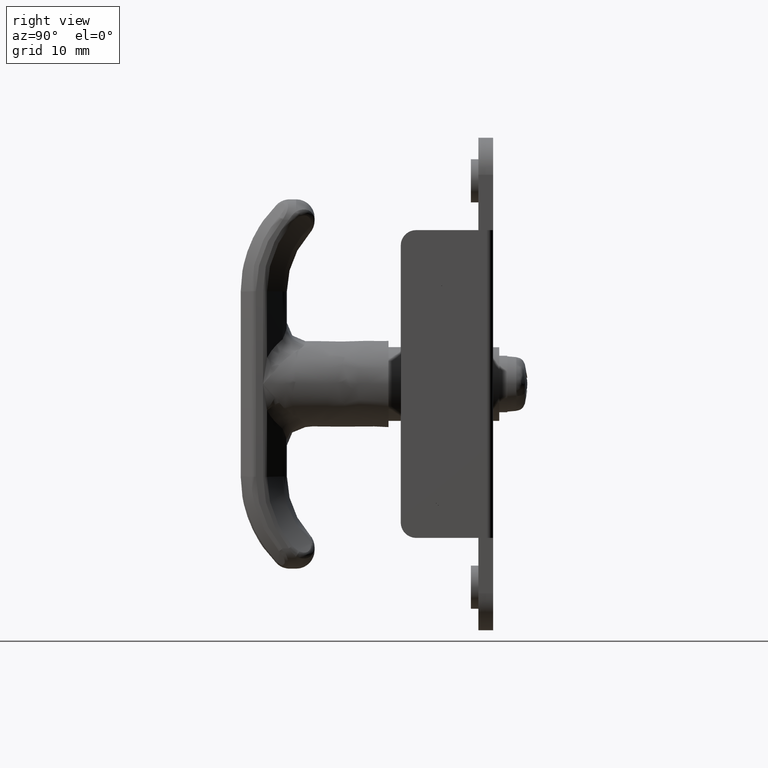
[diagram: clean part render]
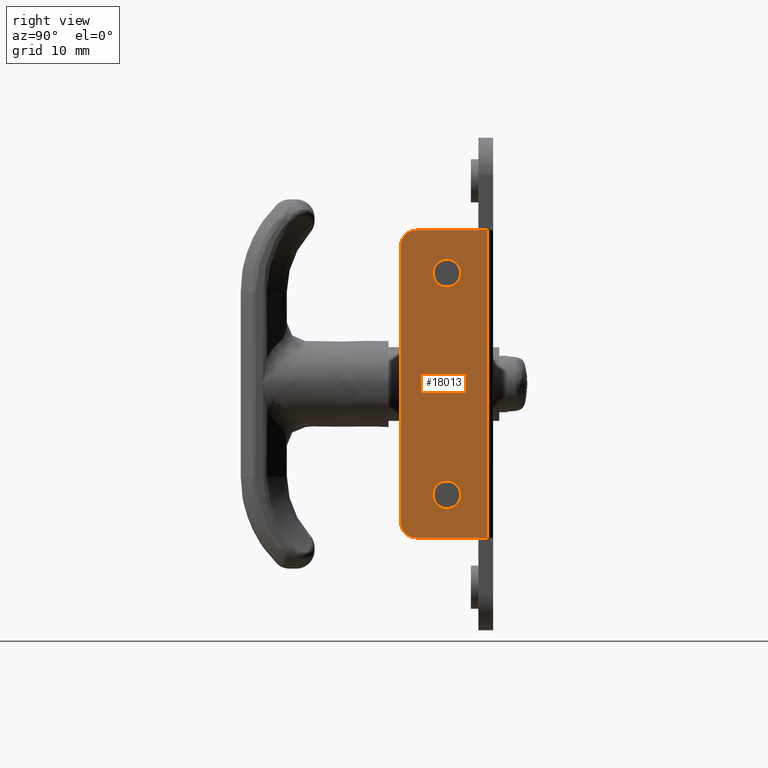
[diagram: same view with one face highlighted and labeled with its STEP entity id]
A machine part, right view. The second image highlights one B-rep face of the part: STEP entity #18013.
In plain terms, the highlighted face is a freeform B-spline surface patch.
Its self-contained STEP definition (entity closure, byte-faithful):
#17388=CARTESIAN_POINT('',(28.750001214080900,-9.218000567834576,16.547080030124668));
#17389=VERTEX_POINT('',#17388);
#17390=CARTESIAN_POINT('',(28.750001214073901,-7.500000000000000,15.750000000000000));
#17391=VERTEX_POINT('',#17390);
#17392=CARTESIAN_POINT('',(28.750001214080900,-9.218000567834576,16.547080030124668));
#17393=CARTESIAN_POINT('',(28.750001214080410,-9.093127849989340,16.399328795595729));
#17394=CARTESIAN_POINT('',(28.750001214079390,-8.858003864478269,16.184857133151802));
#17395=CARTESIAN_POINT('',(28.750001214077770,-8.461253535030773,15.952700355840060));
#17396=CARTESIAN_POINT('',(28.750001214076150,-8.029395461073410,15.793607148507160));
#17397=CARTESIAN_POINT('',(28.750001214074580,-7.693450461458395,15.749942438303700));
#17398=CARTESIAN_POINT('',(28.750001214073901,-7.500000000000000,15.750000000000000));
#17399=B_SPLINE_CURVE_WITH_KNOTS('',3,(#17392,#17393,#17394,#17395,#17396,#17397,#17398),.UNSPECIFIED.,.F.,.U.,(4,1,1,1,4),(0.000000037674338,0.580338301665490,0.946883888496925,1.374480573568158,1.954818837554128),.UNSPECIFIED.);
#17400=EDGE_CURVE('',#17389,#17391,#17399,.T.);
#17402=CARTESIAN_POINT('',(28.750001214073890,-5.250000000001030,18.000002154295672));
#17403=VERTEX_POINT('',#17402);
#17404=CARTESIAN_POINT('',(28.750001214073901,-7.500000000000000,15.750000000000000));
#17405=CARTESIAN_POINT('',(28.750001214073901,-7.260679371651110,15.749871941433311));
#17406=CARTESIAN_POINT('',(28.750001214073858,-6.911023455141323,15.806333772412829));
#17407=CARTESIAN_POINT('',(28.750001214073951,-6.450594946384420,15.997099314913520));
#17408=CARTESIAN_POINT('',(28.750001214073819,-6.106801449783703,16.214783880951249));
#17409=CARTESIAN_POINT('',(28.750001214073912,-5.758488719292896,16.546389300110910));
#17410=CARTESIAN_POINT('',(28.750001214073858,-5.511192470252468,16.916472905762831));
#17411=CARTESIAN_POINT('',(28.750001214073890,-5.306352783828005,17.411037198152179));
#17412=CARTESIAN_POINT('',(28.750001214073929,-5.249864767075620,17.760677917075508));
#17413=CARTESIAN_POINT('',(28.750001214073890,-5.250000000001030,18.000002154295672));
#17414=B_SPLINE_CURVE_WITH_KNOTS('',3,(#17404,#17405,#17406,#17407,#17408,#17409,#17410,#17411,#17412,#17413),.UNSPECIFIED.,.F.,.U.,(4,1,1,1,1,1,1,4),(0.000000059733472,0.717917429352213,1.049274945288062,1.491086140115317,1.932850529557592,2.485107296590333,2.816465192005662,3.534381638980434),.UNSPECIFIED.);
#17415=EDGE_CURVE('',#17391,#17403,#17414,.T.);
#17417=CARTESIAN_POINT('',(28.750001214073901,-7.500000000000000,20.250000000000000));
#17418=VERTEX_POINT('',#17417);
#17419=CARTESIAN_POINT('',(28.750001214073890,-5.250000000001030,18.000002154295672));
#17420=CARTESIAN_POINT('',(28.750001214073858,-5.249869454136657,18.239321430038540));
#17421=CARTESIAN_POINT('',(28.750001214073979,-5.312276752330865,18.625792411638852));
#17422=CARTESIAN_POINT('',(28.750001214073801,-5.529689347817583,19.116180994300219));
#17423=CARTESIAN_POINT('',(28.750001214074011,-5.785294750648569,19.479120054865952));
#17424=CARTESIAN_POINT('',(28.750001214073869,-6.080014325436256,19.759693700462069));
#17425=CARTESIAN_POINT('',(28.750001214073880,-6.417645428383884,19.985294536933971));
#17426=CARTESIAN_POINT('',(28.750001214073880,-6.874205248248210,20.187730325524761));
#17427=CARTESIAN_POINT('',(28.750001214074040,-7.260682963684569,20.250128121775610));
#17428=CARTESIAN_POINT('',(28.750001214073901,-7.500000000000000,20.250000000000000));
#17429=B_SPLINE_CURVE_WITH_KNOTS('',3,(#17419,#17420,#17421,#17422,#17423,#17424,#17425,#17426,#17427,#17428),.UNSPECIFIED.,.F.,.U.,(4,1,1,1,1,1,1,4),(0.000000062689470,0.717916938295695,1.159729760297274,1.601529381446035,2.043293458178522,2.374649871447002,2.816463255878045,3.534379210526552),.UNSPECIFIED.);
#17430=EDGE_CURVE('',#17403,#17418,#17429,.T.);
#17432=CARTESIAN_POINT('',(28.750001214041720,-9.048797375063789,19.632091992117541));
#17433=VERTEX_POINT('',#17432);
#17434=CARTESIAN_POINT('',(28.750001214073901,-7.500000000000000,20.250000000000000));
#17435=CARTESIAN_POINT('',(28.750001214069790,-7.695742636055701,20.250059694257128));
#17436=CARTESIAN_POINT('',(28.750001214062848,-8.033796451849049,20.205586695869890));
#17437=CARTESIAN_POINT('',(28.750001214051679,-8.569960007851625,20.006322665175961));
#17438=CARTESIAN_POINT('',(28.750001214045199,-8.881061755686185,19.791414085106439));
#17439=CARTESIAN_POINT('',(28.750001214041720,-9.048797375063789,19.632091992117541));
#17440=B_SPLINE_CURVE_WITH_KNOTS('',3,(#17434,#17435,#17436,#17437,#17438,#17439),.UNSPECIFIED.,.F.,.U.,(4,1,1,4),(0.000000020755181,0.587227267749138,1.014285136366791,1.708280788926079),.UNSPECIFIED.);
#17441=EDGE_CURVE('',#17418,#17433,#17440,.T.);
#17524=CARTESIAN_POINT('',(28.750001214073901,-9.749999999998968,17.999997845704350));
#17525=VERTEX_POINT('',#17524);
#17526=CARTESIAN_POINT('',(28.750001214073901,-9.749999999998968,17.999997845704350));
#17527=CARTESIAN_POINT('',(28.750001214074828,-9.750049746330896,17.819007708777612));
#17528=CARTESIAN_POINT('',(28.750001214076200,-9.712060213664486,17.506431186920992));
#17529=CARTESIAN_POINT('',(28.750001214078779,-9.541295093527360,17.006243922985139));
#17530=CARTESIAN_POINT('',(28.750001214080068,-9.356183516471063,16.710356102658199));
#17531=CARTESIAN_POINT('',(28.750001214080900,-9.218000567834576,16.547080030124668));
#17532=B_SPLINE_CURVE_WITH_KNOTS('',3,(#17526,#17527,#17528,#17529,#17530,#17531),.UNSPECIFIED.,.F.,.U.,(4,1,1,4),(0.000000022571882,0.542964625217992,0.937829501006334,1.579517834943198),.UNSPECIFIED.);
#17533=EDGE_CURVE('',#17525,#17389,#17532,.T.);
#17556=CARTESIAN_POINT('',(28.750001214041720,-9.048797375063789,19.632091992117541));
#17557=CARTESIAN_POINT('',(28.750001214044008,-9.173001756916850,19.514273523307750));
#17558=CARTESIAN_POINT('',(28.750001214049011,-9.381986688644695,19.264768673487609));
#17559=CARTESIAN_POINT('',(28.750001214059651,-9.665612942167197,18.722631694390429));
#17560=CARTESIAN_POINT('',(28.750001214068259,-9.750293938310643,18.285372519775141));
#17561=CARTESIAN_POINT('',(28.750001214073901,-9.749999999998968,17.999997845704350));
#17562=B_SPLINE_CURVE_WITH_KNOTS('',3,(#17556,#17557,#17558,#17559,#17560,#17561),.UNSPECIFIED.,.F.,.U.,(4,1,1,4),(0.000000016008517,0.513591135199639,0.970116156709848,1.826101662500576),.UNSPECIFIED.);
#17563=EDGE_CURVE('',#17433,#17525,#17562,.T.);
#17594=CARTESIAN_POINT('',(28.750001214080900,-9.218000567834576,-19.452919969875332));
#17595=VERTEX_POINT('',#17594);
#17596=CARTESIAN_POINT('',(28.750001214073901,-7.500000000000000,-20.250000000000000));
#17597=VERTEX_POINT('',#17596);
#17598=CARTESIAN_POINT('',(28.750001214080900,-9.218000567834576,-19.452919969875332));
#17599=CARTESIAN_POINT('',(28.750001214080420,-9.106257672170953,-19.585101401476440));
#17600=CARTESIAN_POINT('',(28.750001214079429,-8.852068127972176,-19.823459121398670));
#17601=CARTESIAN_POINT('',(28.750001214077091,-8.283704158094452,-20.150977930324501));
#17602=CARTESIAN_POINT('',(28.750001214075208,-7.805513714933565,-20.250394207686401));
#17603=CARTESIAN_POINT('',(28.750001214073901,-7.500000000000000,-20.250000000000000));
#17604=B_SPLINE_CURVE_WITH_KNOTS('',3,(#17598,#17599,#17600,#17601,#17602,#17603),.UNSPECIFIED.,.F.,.U.,(4,1,1,4),(0.000000037674710,0.519249014585199,1.038493200731786,1.954818837554128),.UNSPECIFIED.);
#17605=EDGE_CURVE('',#17595,#17597,#17604,.T.);
#17607=CARTESIAN_POINT('',(28.750001214073901,-5.250000000001030,-17.999997845704328));
#17608=VERTEX_POINT('',#17607);
#17609=CARTESIAN_POINT('',(28.750001214073901,-7.500000000000000,-20.250000000000000));
#17610=CARTESIAN_POINT('',(28.750001214073912,-7.352744839931322,-20.250016826169201));
#17611=CARTESIAN_POINT('',(28.750001214073901,-7.039810315800452,-20.219181336484208));
#17612=CARTESIAN_POINT('',(28.750001214073901,-6.633734584542314,-20.090546613951460));
#17613=CARTESIAN_POINT('',(28.750001214073890,-6.259332427741922,-19.890398999949241));
#17614=CARTESIAN_POINT('',(28.750001214073901,-5.909351793698999,-19.617317456941120));
#17615=CARTESIAN_POINT('',(28.750001214073912,-5.556305599310599,-19.187244741301630));
#17616=CARTESIAN_POINT('',(28.750001214073901,-5.307500452194002,-18.625852391363502));
#17617=CARTESIAN_POINT('',(28.750001214073912,-5.249942305689787,-18.202482476834511));
#17618=CARTESIAN_POINT('',(28.750001214073901,-5.250000000001030,-17.999997845704328));
#17619=B_SPLINE_CURVE_WITH_KNOTS('',3,(#17609,#17610,#17611,#17612,#17613,#17614,#17615,#17616,#17617,#17618),.UNSPECIFIED.,.F.,.U.,(4,1,1,1,1,1,1,4),(0.000000059735357,0.441778676277392,0.938820997770737,1.270185435190966,1.711971311090713,2.264196236357801,2.926920984478665,3.534381638980435),.UNSPECIFIED.);
#17620=EDGE_CURVE('',#17597,#17608,#17619,.T.);
#17622=CARTESIAN_POINT('',(28.750001214073901,-7.500000000000000,-15.750000000000000));
#17623=VERTEX_POINT('',#17622);
#17624=CARTESIAN_POINT('',(28.750001214073901,-5.250000000001030,-17.999997845704328));
#17625=CARTESIAN_POINT('',(28.750001214073890,-5.249862400333345,-17.760684578371809));
#17626=CARTESIAN_POINT('',(28.750001214073880,-5.318207800654113,-17.337379100959559));
#17627=CARTESIAN_POINT('',(28.750001214073940,-5.548186234250407,-16.851172193599758));
#17628=CARTESIAN_POINT('',(28.750001214073890,-5.812103607251402,-16.495382008711449));
#17629=CARTESIAN_POINT('',(28.750001214073919,-6.106797513518964,-16.214779725508610));
#17630=CARTESIAN_POINT('',(28.750001214073880,-6.450596894164530,-15.997097005351270));
#17631=CARTESIAN_POINT('',(28.750001214073869,-6.911022065088121,-15.806333371515480));
#17632=CARTESIAN_POINT('',(28.750001214074011,-7.260680971377520,-15.749871960263400));
#17633=CARTESIAN_POINT('',(28.750001214073901,-7.500000000000000,-15.750000000000000));
#17634=B_SPLINE_CURVE_WITH_KNOTS('',3,(#17624,#17625,#17626,#17627,#17628,#17629,#17630,#17631,#17632,#17633),.UNSPECIFIED.,.F.,.U.,(4,1,1,1,1,1,1,4),(0.000000062688580,0.717916938295080,1.270184564911475,1.601529381445815,2.043293458178423,2.485105588088005,2.816463255877965,3.534379210526517),.UNSPECIFIED.);
#17635=EDGE_CURVE('',#17608,#17623,#17634,.T.);
#17637=CARTESIAN_POINT('',(28.750001214041720,-9.048797375063789,-16.367908007882459));
#17638=VERTEX_POINT('',#17637);
#17639=CARTESIAN_POINT('',(28.750001214073901,-7.500000000000000,-15.750000000000000));
#17640=CARTESIAN_POINT('',(28.750001214069808,-7.695743027227578,-15.749941839948830));
#17641=CARTESIAN_POINT('',(28.750001214062070,-8.069389800075316,-15.799071086051260));
#17642=CARTESIAN_POINT('',(28.750001214051039,-8.602004937179373,-16.011550104255040));
#17643=CARTESIAN_POINT('',(28.750001214044669,-8.906847399988928,-16.233128902511119));
#17644=CARTESIAN_POINT('',(28.750001214041720,-9.048797375063789,-16.367908007882459));
#17645=B_SPLINE_CURVE_WITH_KNOTS('',3,(#17639,#17640,#17641,#17642,#17643,#17644),.UNSPECIFIED.,.F.,.U.,(4,1,1,4),(0.000000020755228,0.587227267749139,1.121053541988207,1.708280788926087),.UNSPECIFIED.);
#17646=EDGE_CURVE('',#17623,#17638,#17645,.T.);
#17729=CARTESIAN_POINT('',(28.750001214073901,-9.749999999998970,-18.000002154295640));
#17730=VERTEX_POINT('',#17729);
#17731=CARTESIAN_POINT('',(28.750001214073901,-9.749999999998970,-18.000002154295640));
#17732=CARTESIAN_POINT('',(28.750001214075279,-9.750243852631698,-18.279735471150602));
#17733=CARTESIAN_POINT('',(28.750001214077709,-9.650458040839791,-18.806014913760031));
#17734=CARTESIAN_POINT('',(28.750001214080029,-9.377493418860336,-19.264560418824999));
#17735=CARTESIAN_POINT('',(28.750001214080900,-9.218000567834576,-19.452919969875332));
#17736=B_SPLINE_CURVE_WITH_KNOTS('',3,(#17731,#17732,#17733,#17734,#17735),.UNSPECIFIED.,.F.,.U.,(4,1,4),(0.000000022572147,0.839112853888071,1.579517834943202),.UNSPECIFIED.);
#17737=EDGE_CURVE('',#17730,#17595,#17736,.T.);
#17760=CARTESIAN_POINT('',(28.750001214041720,-9.048797375063789,-16.367908007882459));
#17761=CARTESIAN_POINT('',(28.750001214044069,-9.173001420604116,-16.485725998618239));
#17762=CARTESIAN_POINT('',(28.750001214048918,-9.381987129648051,-16.735231740372090));
#17763=CARTESIAN_POINT('',(28.750001214059679,-9.665612712549271,-17.277367659280820));
#17764=CARTESIAN_POINT('',(28.750001214068281,-9.750294024542436,-17.714628449606160));
#17765=CARTESIAN_POINT('',(28.750001214073901,-9.749999999998970,-18.000002154295640));
#17766=B_SPLINE_CURVE_WITH_KNOTS('',3,(#17760,#17761,#17762,#17763,#17764,#17765),.UNSPECIFIED.,.F.,.U.,(4,1,1,4),(0.000000016009209,0.513591135199901,0.970116156709848,1.826101662500575),.UNSPECIFIED.);
#17767=EDGE_CURVE('',#17638,#17730,#17766,.T.);
#17788=CARTESIAN_POINT('',(28.750001214073951,-0.999999999999972,-25.0));
#17789=VERTEX_POINT('',#17788);
#17807=CARTESIAN_POINT('',(28.750001214073951,-0.999999999999972,25.0));
#17808=VERTEX_POINT('',#17807);
#17819=CARTESIAN_POINT('',(28.750001214073951,-0.999999999999972,-25.0));
#17820=CARTESIAN_POINT('',(28.750001214073951,-0.999999999999972,25.0));
#17821=QUASI_UNIFORM_CURVE('',1,(#17819,#17820),.UNSPECIFIED.,.F.,.U.);
#17822=EDGE_CURVE('',#17789,#17808,#17821,.T.);
#17940=CARTESIAN_POINT('',(28.750001214073951,-15.699299972865290,-27.497499903090301));
#17941=CARTESIAN_POINT('',(28.750001214073951,-0.300699651625426,-27.497499903090301));
#17942=CARTESIAN_POINT('',(28.750001214073951,-15.699299972865290,27.497501244194812));
#17943=CARTESIAN_POINT('',(28.750001214073951,-0.300699651625426,27.497501244194812));
#17944=B_SPLINE_SURFACE_WITH_KNOTS('',1,1,((#17940,#17942),(#17941,#17943)),.UNSPECIFIED.,.F.,.F.,.U.,(2,2),(2,2),(0.0,15.398600321239860),(0.0,54.995001147285109),.UNSPECIFIED.);
#17945=CARTESIAN_POINT('',(28.750001214073901,-12.500000000000000,-25.0));
#17946=VERTEX_POINT('',#17945);
#17947=CARTESIAN_POINT('',(28.750001214073901,-12.500000000000000,-25.0));
#17948=CARTESIAN_POINT('',(28.750001214073951,-0.999999999999972,-25.0));
#17949=QUASI_UNIFORM_CURVE('',1,(#17947,#17948),.UNSPECIFIED.,.F.,.U.);
#17950=EDGE_CURVE('',#17946,#17789,#17949,.T.);
#17951=ORIENTED_EDGE('',*,*,#17950,.T.);
#17952=ORIENTED_EDGE('',*,*,#17822,.T.);
#17953=CARTESIAN_POINT('',(28.750001214073901,-12.500000000000000,25.0));
#17954=VERTEX_POINT('',#17953);
#17955=CARTESIAN_POINT('',(28.750001214073951,-0.999999999999972,25.0));
#17956=CARTESIAN_POINT('',(28.750001214073901,-12.500000000000000,25.0));
#17957=QUASI_UNIFORM_CURVE('',1,(#17955,#17956),.UNSPECIFIED.,.F.,.U.);
#17958=EDGE_CURVE('',#17808,#17954,#17957,.T.);
#17959=ORIENTED_EDGE('',*,*,#17958,.T.);
#17960=CARTESIAN_POINT('',(28.750001214073901,-15.0,22.500000000000000));
#17961=VERTEX_POINT('',#17960);
#17962=CARTESIAN_POINT('',(28.750001214073901,-12.500000000000000,25.0));
#17963=CARTESIAN_POINT('',(28.750001214073912,-12.724990423697561,25.000078278892062));
#17964=CARTESIAN_POINT('',(28.750001214073990,-13.113555346431490,24.947168811393482));
#17965=CARTESIAN_POINT('',(28.750001214073759,-13.631280750258190,24.747458324313421));
#17966=CARTESIAN_POINT('',(28.750001214074050,-14.047996328956071,24.483573385050981));
#17967=CARTESIAN_POINT('',(28.750001214073869,-14.405230353160491,24.143459798185539));
#17968=CARTESIAN_POINT('',(28.750001214073880,-14.689234979205450,23.740193327481581));
#17969=CARTESIAN_POINT('',(28.750001214073890,-14.930805007782640,23.195321439622230));
#17970=CARTESIAN_POINT('',(28.750001214073940,-15.000144636182590,22.765911019092719));
#17971=CARTESIAN_POINT('',(28.750001214073901,-15.0,22.500000000000000));
#17972=B_SPLINE_CURVE_WITH_KNOTS('',3,(#17962,#17963,#17964,#17965,#17966,#17967,#17968,#17969,#17970,#17971),.UNSPECIFIED.,.F.,.U.,(4,1,1,1,1,1,1,4),(0.000000048785964,0.674963356796230,1.165858561914778,1.656751593041021,2.147620588130535,2.638510575359981,3.129400375707712,3.927089360836407),.UNSPECIFIED.);
#17973=EDGE_CURVE('',#17954,#17961,#17972,.T.);
#17974=ORIENTED_EDGE('',*,*,#17973,.T.);
#17975=CARTESIAN_POINT('',(28.750001214073901,-15.0,-22.500000000000000));
#17976=VERTEX_POINT('',#17975);
#17977=CARTESIAN_POINT('',(28.750001214073901,-15.0,22.500000000000000));
#17978=CARTESIAN_POINT('',(28.750001214073901,-15.0,-22.500000000000000));
#17979=QUASI_UNIFORM_CURVE('',1,(#17977,#17978),.UNSPECIFIED.,.F.,.U.);
#17980=EDGE_CURVE('',#17961,#17976,#17979,.T.);
#17981=ORIENTED_EDGE('',*,*,#17980,.T.);
#17982=CARTESIAN_POINT('',(28.750001214073901,-15.0,-22.500000000000000));
#17983=CARTESIAN_POINT('',(28.750001214073901,-15.000078067106500,-22.724991029361870));
#17984=CARTESIAN_POINT('',(28.750001214073869,-14.947168371381361,-23.113554289294079));
#17985=CARTESIAN_POINT('',(28.750001214073961,-14.747459355286420,-23.631281133703119));
#17986=CARTESIAN_POINT('',(28.750001214073890,-14.483574002744120,-24.048000270701198));
#17987=CARTESIAN_POINT('',(28.750001214073869,-14.171795997473639,-24.375448447704692));
#17988=CARTESIAN_POINT('',(28.750001214073951,-13.809398596947799,-24.644215905765542));
#17989=CARTESIAN_POINT('',(28.750001214073890,-13.277052796678550,-24.912259004557299));
#17990=CARTESIAN_POINT('',(28.750001214073851,-12.806844549911011,-25.000293224202849));
#17991=CARTESIAN_POINT('',(28.750001214073901,-12.500000000000000,-25.0));
#17992=B_SPLINE_CURVE_WITH_KNOTS('',3,(#17982,#17983,#17984,#17985,#17986,#17987,#17988,#17989,#17990,#17991),.UNSPECIFIED.,.F.,.U.,(4,1,1,1,1,1,1,4),(0.000000048789030,0.674963356798858,1.165858561916971,1.656751593042756,2.147620588131766,2.515787155926325,3.006677926627936,3.927089360836407),.UNSPECIFIED.);
#17993=EDGE_CURVE('',#17976,#17946,#17992,.T.);
#17994=ORIENTED_EDGE('',*,*,#17993,.T.);
#17995=EDGE_LOOP('',(#17951,#17952,#17959,#17974,#17981,#17994));
#17996=FACE_OUTER_BOUND('',#17995,.T.);
#17997=ORIENTED_EDGE('',*,*,#17620,.F.);
#17998=ORIENTED_EDGE('',*,*,#17605,.F.);
#17999=ORIENTED_EDGE('',*,*,#17737,.F.);
#18000=ORIENTED_EDGE('',*,*,#17767,.F.);
#18001=ORIENTED_EDGE('',*,*,#17646,.F.);
#18002=ORIENTED_EDGE('',*,*,#17635,.F.);
#18003=EDGE_LOOP('',(#17997,#17998,#17999,#18000,#18001,#18002));
#18004=FACE_BOUND('',#18003,.T.);
#18005=ORIENTED_EDGE('',*,*,#17415,.F.);
#18006=ORIENTED_EDGE('',*,*,#17400,.F.);
#18007=ORIENTED_EDGE('',*,*,#17533,.F.);
#18008=ORIENTED_EDGE('',*,*,#17563,.F.);
#18009=ORIENTED_EDGE('',*,*,#17441,.F.);
#18010=ORIENTED_EDGE('',*,*,#17430,.F.);
#18011=EDGE_LOOP('',(#18005,#18006,#18007,#18008,#18009,#18010));
#18012=FACE_BOUND('',#18011,.T.);
#18013=ADVANCED_FACE('',(#17996,#18004,#18012),#17944,.T.);